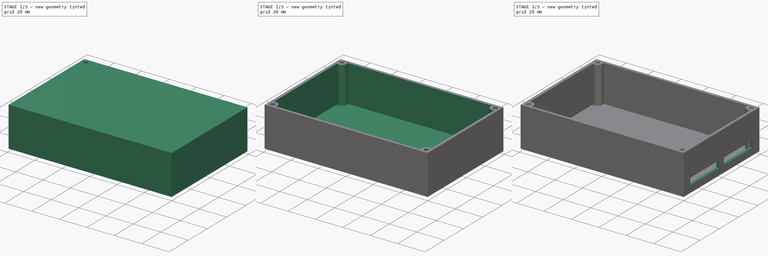
[diagram: build sequence overview — one tinted view per stage of 3, left to right]
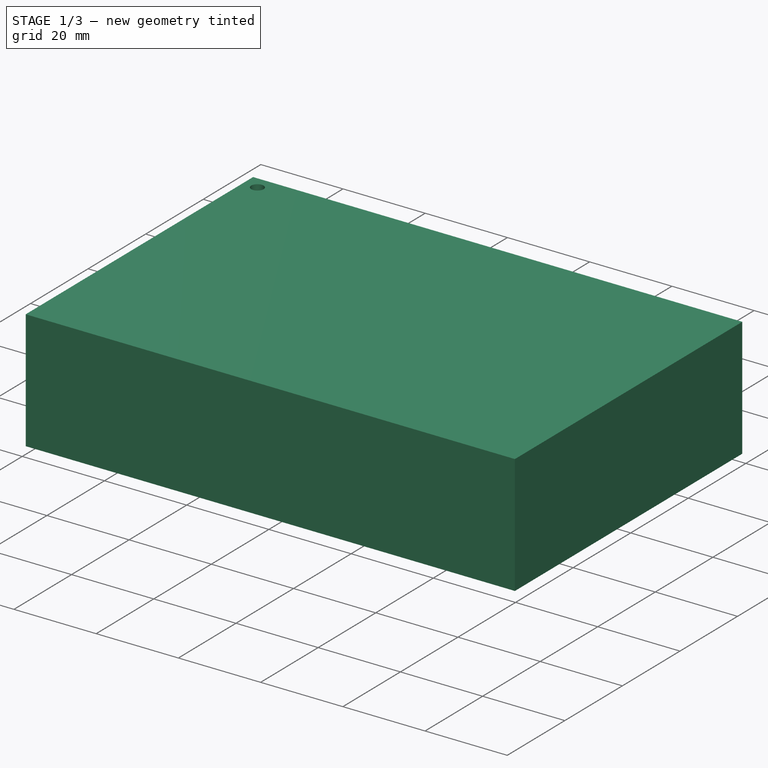
[diagram: stage 1 of 3 — iso view after this stage's code; geometry added in this stage tinted green]
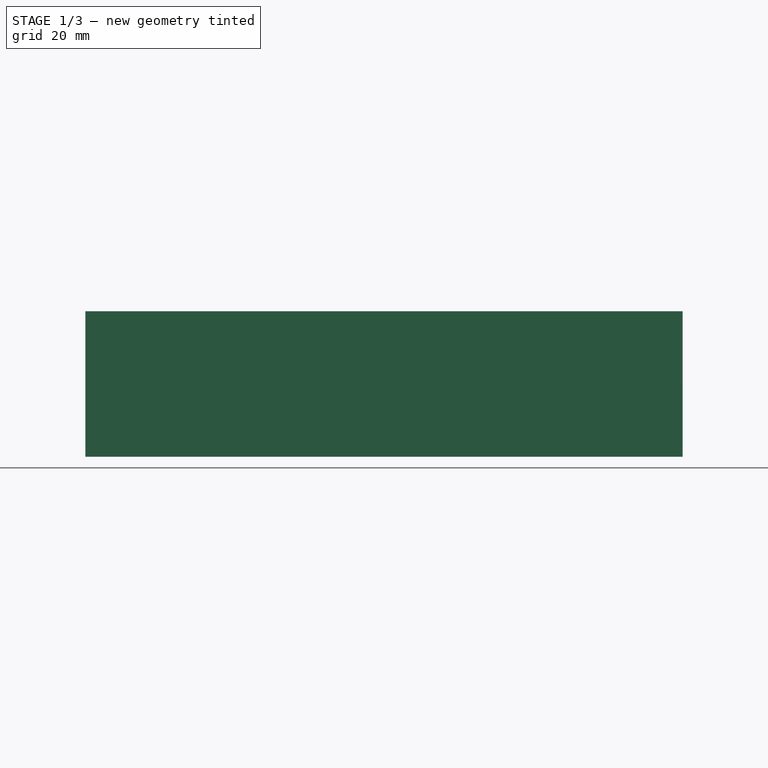
[diagram: stage 1 of 3 — front view after this stage's code; geometry added in this stage tinted green]
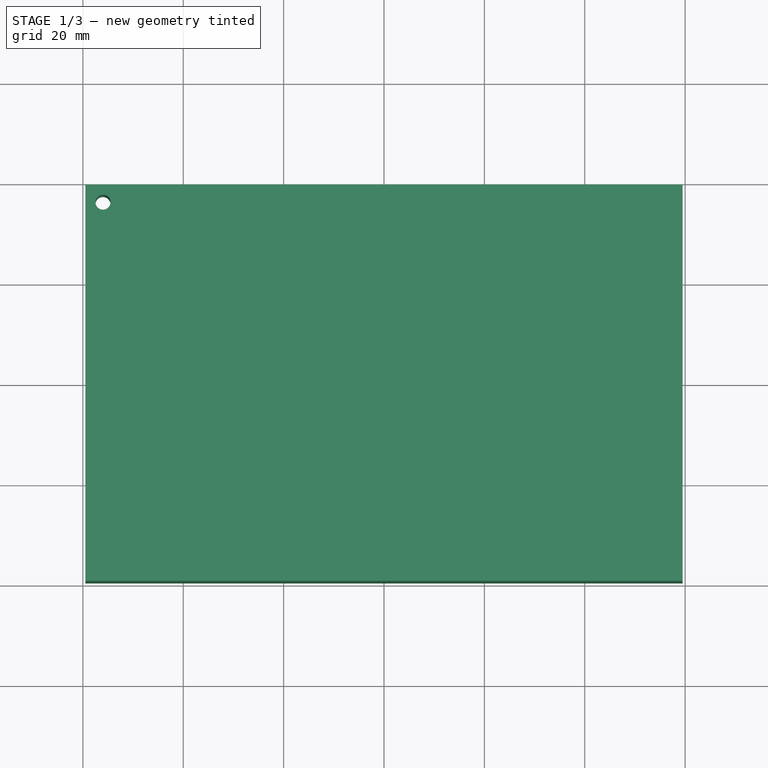
[diagram: stage 1 of 3 — top view after this stage's code; geometry added in this stage tinted green]
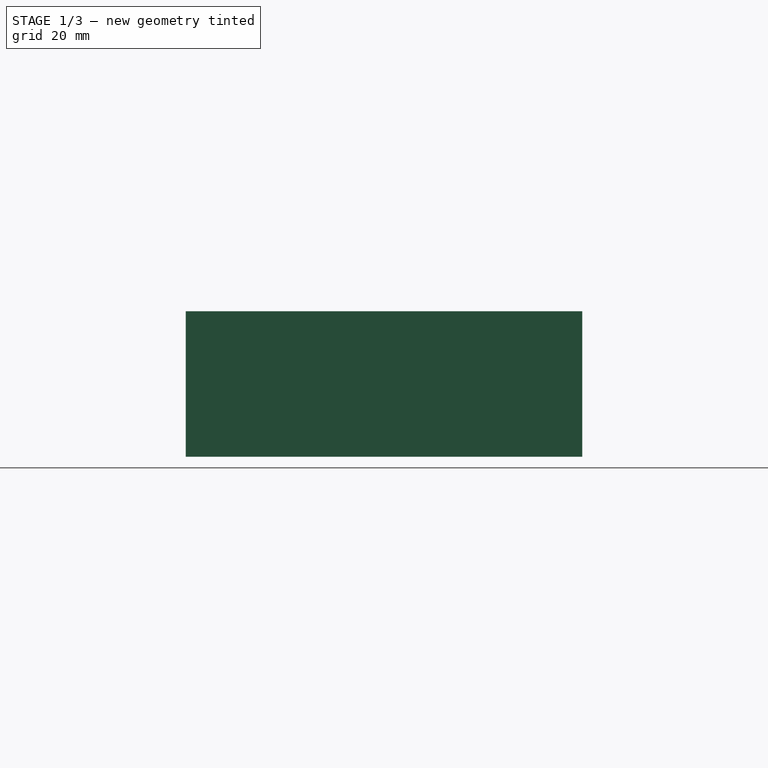
[diagram: stage 1 of 3 — right view after this stage's code; geometry added in this stage tinted green]
FCSTD DOCUMENT  (FreeCAD 0.16R6706 (Git))
Label: InjectionControllerCase
License: All rights reserved
LicenseURL: http://en.wikipedia.org/wiki/All_rights_reserved
objects: Sketcher::SketchObject×3, PartDesign::Mirrored×3, PartDesign::Pocket×2, PartDesign::Pad×1, PartDesign::MultiTransform×1, Part::Thickness×1
note: 14 computed .brp shape members not serialized (recipe doc carries the construction recipe); baked Part::Feature solids carry a one-line shape summary decoded from their .brp

FEATURE [Sketcher::SketchObject] Sketch
  sketch-geometry (6):
    g0: LineSegment StartX=-59.5 StartY=39.5 StartZ=0 EndX=59.5 EndY=39.5 EndZ=0
    g1: LineSegment StartX=59.5 StartY=39.5 StartZ=0 EndX=59.5 EndY=-39.5 EndZ=0
    g2: LineSegment StartX=59.5 StartY=-39.5 StartZ=0 EndX=-59.5 EndY=-39.5 EndZ=0
    g3: LineSegment StartX=-59.5 StartY=-39.5 StartZ=0 EndX=-59.5 EndY=39.5 EndZ=0
    g4: LineSegment [constr] StartX=59.5 StartY=39.5 StartZ=0 EndX=-59.5 EndY=-39.5 EndZ=0
    g5: LineSegment [constr] StartX=59.5 StartY=-39.5 StartZ=0 EndX=-59.5 EndY=39.5 EndZ=0
  constraints (16):
    c: Coincident(g0,g1)
    c: Coincident(g1,g2)
    c: Coincident(g2,g3)
    c: Coincident(g3,g0)
    c: Horizontal(g0)
    c: Horizontal(g2)
    c: Vertical(g1)
    c: Vertical(g3)
    c: Distance(g0) = 119
    c: Distance(g3) = 79
    c: Coincident(g4,g0)
    c: Coincident(g4,g2)
    c: Coincident(g5,g1)
    c: Coincident(g5,g0)
    c: PointOnObject(g-1,g4)
    c: PointOnObject(g-1,g5)
FEATURE [PartDesign::Pad] Pad
  Length = 29
  Length2 = 100
  Sketch = -> Sketch
  Type = 0
FEATURE [Sketcher::SketchObject] Sketch001
  ExternalGeometry = -> [Pad]
  Placement = pos=(0,0,29) rot=(0,0,1;0rad)
  Support = -> Pad [Face6]
  expr: Constraints[2] = 7 / 2
  expr: Constraints[1] = 7 / 2
  expr: Constraints[0] = 3 / 2
  sketch-geometry (1):
    g0: Circle CenterX=-56 CenterY=36 CenterZ=0 NormalX=0 NormalY=0 NormalZ=1 Radius=1.5
  constraints (3):
    c: Radius(g0) = 1.5
    c: Distance(g0,g-3) = 3.5
    c: Distance(g0,g-4) = 3.5
FEATURE [PartDesign::Pocket] Pocket
  Length = 5
  Sketch = -> Sketch001
  Type = 1
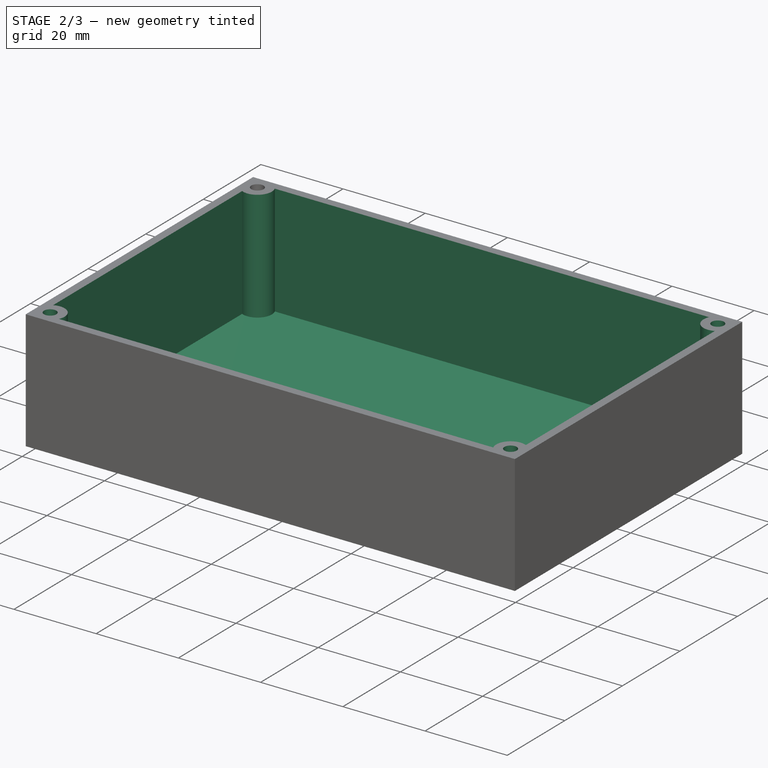
[diagram: stage 2 of 3 — iso view after this stage's code; geometry added in this stage tinted green]
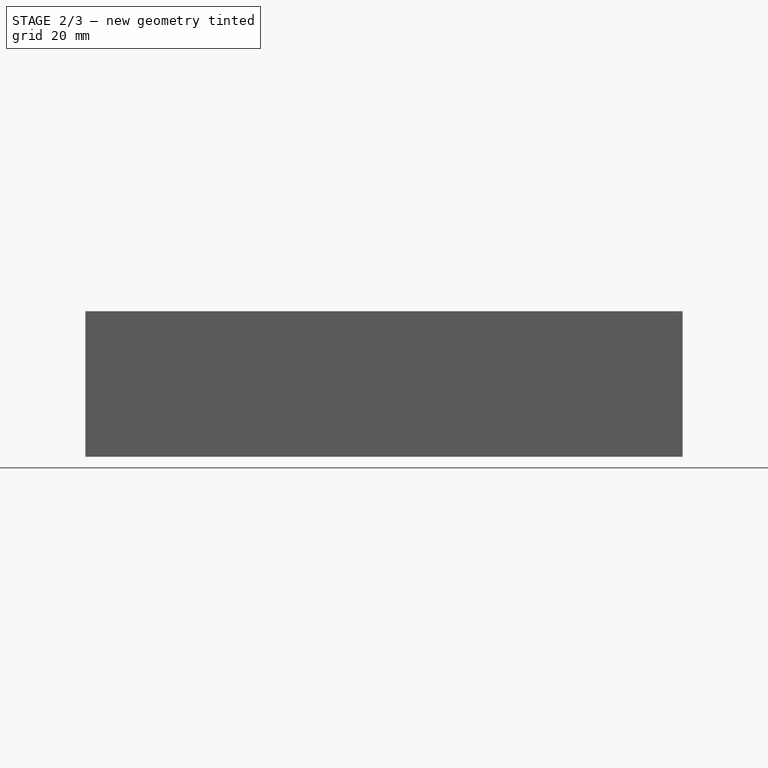
[diagram: stage 2 of 3 — front view after this stage's code; geometry added in this stage tinted green]
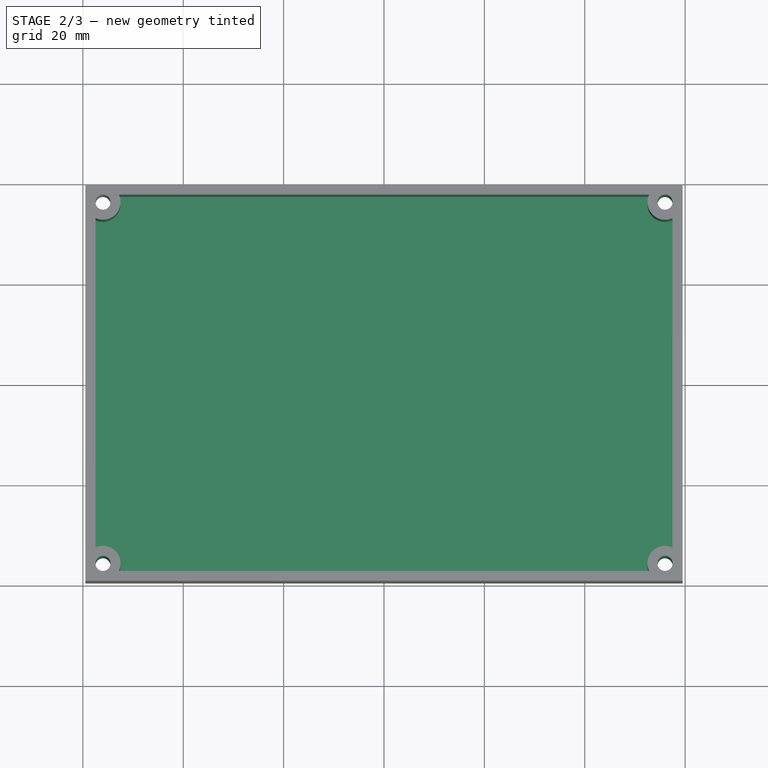
[diagram: stage 2 of 3 — top view after this stage's code; geometry added in this stage tinted green]
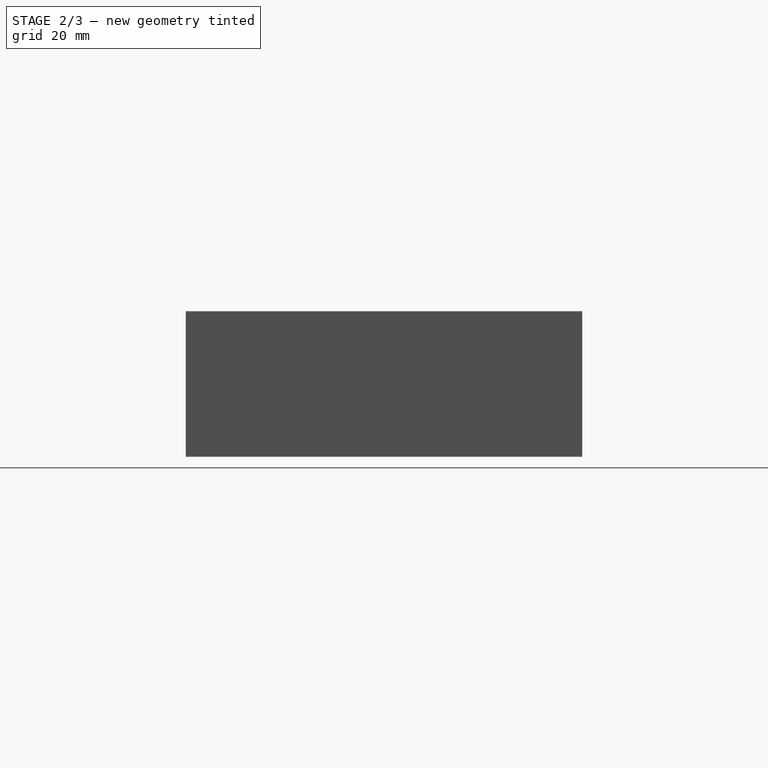
[diagram: stage 2 of 3 — right view after this stage's code; geometry added in this stage tinted green]
FEATURE [PartDesign::Mirrored] Mirrored
  MirrorPlane = -> Sketch001 [V_Axis]
FEATURE [PartDesign::Mirrored] Mirrored001
  MirrorPlane = -> Sketch001 [H_Axis]
FEATURE [PartDesign::MultiTransform] MultiTransform
  Originals = -> [Pocket]
  Transformations = -> [Mirrored,Mirrored001]
FEATURE [Part::Thickness] Thickness
  Faces = -> MultiTransform [Face5]
  Intersection = true
  Join = 0
  Mode = 0
  SelfIntersection = false
  Value = -2
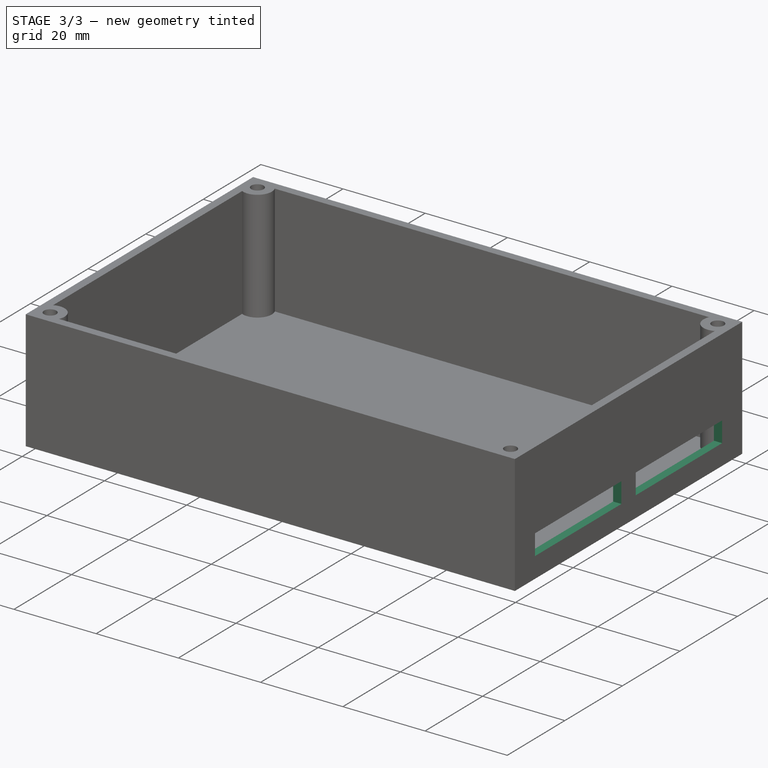
[diagram: stage 3 of 3 — iso view after this stage's code; geometry added in this stage tinted green]
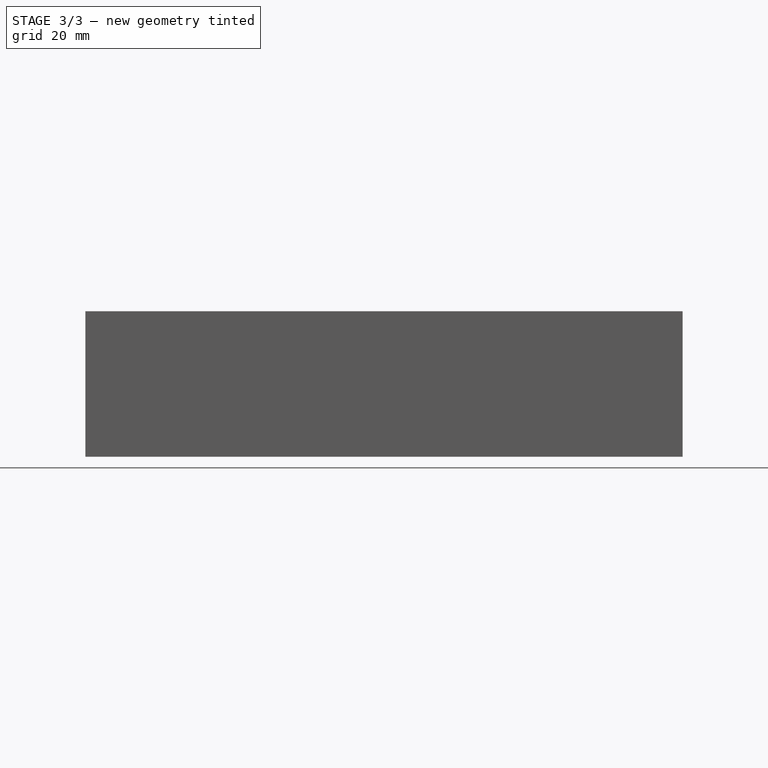
[diagram: stage 3 of 3 — front view after this stage's code; geometry added in this stage tinted green]
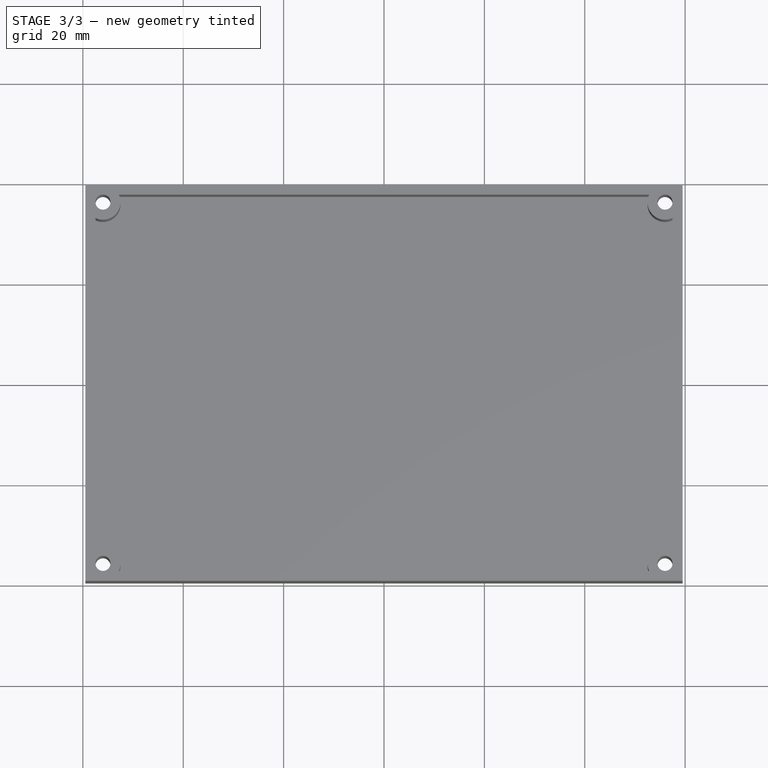
[diagram: stage 3 of 3 — top view after this stage's code; geometry added in this stage tinted green]
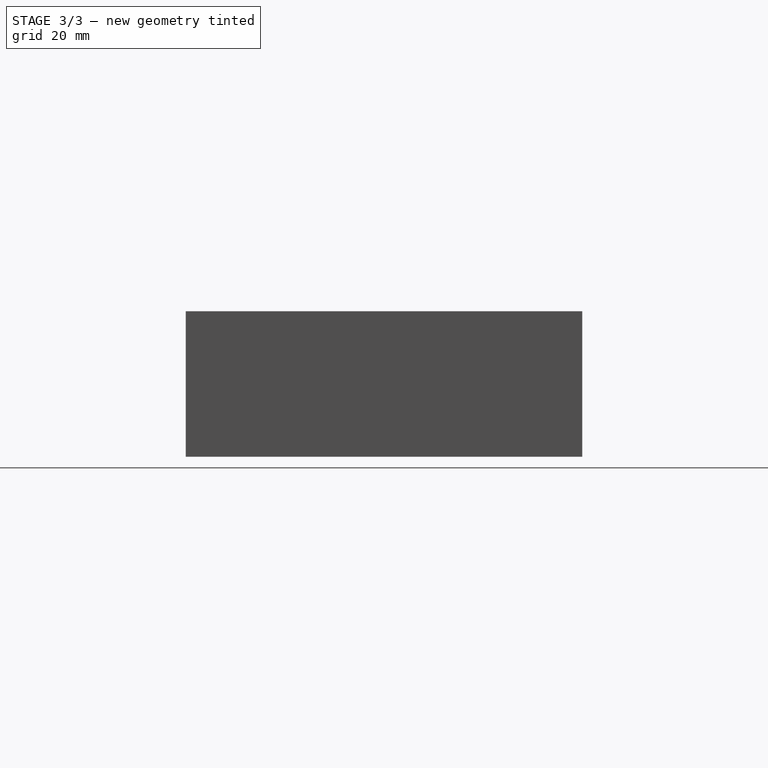
[diagram: stage 3 of 3 — right view after this stage's code; geometry added in this stage tinted green]
FEATURE [Sketcher::SketchObject] Sketch002
  Placement = pos=(59.5,0,0) rot=(0.57735,0.57735,0.57735;2.0944rad)
  Support = -> Thickness [Face3]
  sketch-geometry (4):
    g0: LineSegment StartX=-32.5 StartY=10 StartZ=0 EndX=-2.5 EndY=10 EndZ=0
    g1: LineSegment StartX=-2.5 StartY=10 StartZ=0 EndX=-2.5 EndY=5 EndZ=0
    g2: LineSegment StartX=-2.5 StartY=5 StartZ=0 EndX=-32.5 EndY=5 EndZ=0
    g3: LineSegment StartX=-32.5 StartY=5 StartZ=0 EndX=-32.5 EndY=10 EndZ=0
  constraints (12):
    c: Coincident(g0,g1)
    c: Coincident(g1,g2)
    c: Coincident(g2,g3)
    c: Coincident(g3,g0)
    c: Horizontal(g0)
    c: Horizontal(g2)
    c: Vertical(g1)
    c: Vertical(g3)
    c: DistanceY(g-1,g1) = 5
    c: Distance(g1) = 5
    c: Distance(g0) = 30
    c: DistanceX(g1,g-1) = 2.5
FEATURE [PartDesign::Pocket] Pocket001
  Length = 5
  Sketch = -> Sketch002
  Type = 2
FEATURE [PartDesign::Mirrored] Mirrored002
  MirrorPlane = -> Sketch002 [V_Axis]
  Originals = -> [Pocket001]
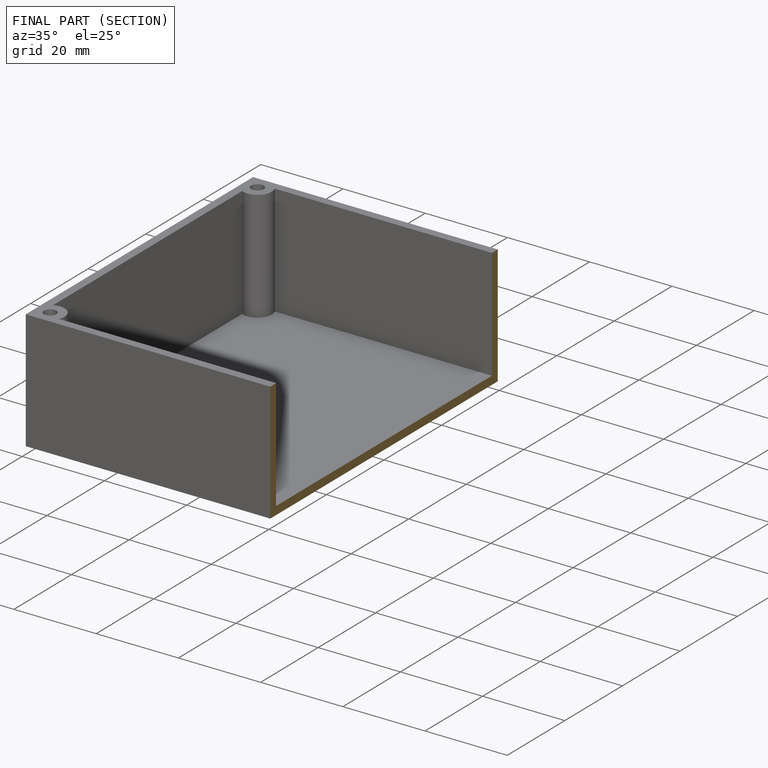
[diagram: finished part — half-section view (interior)]
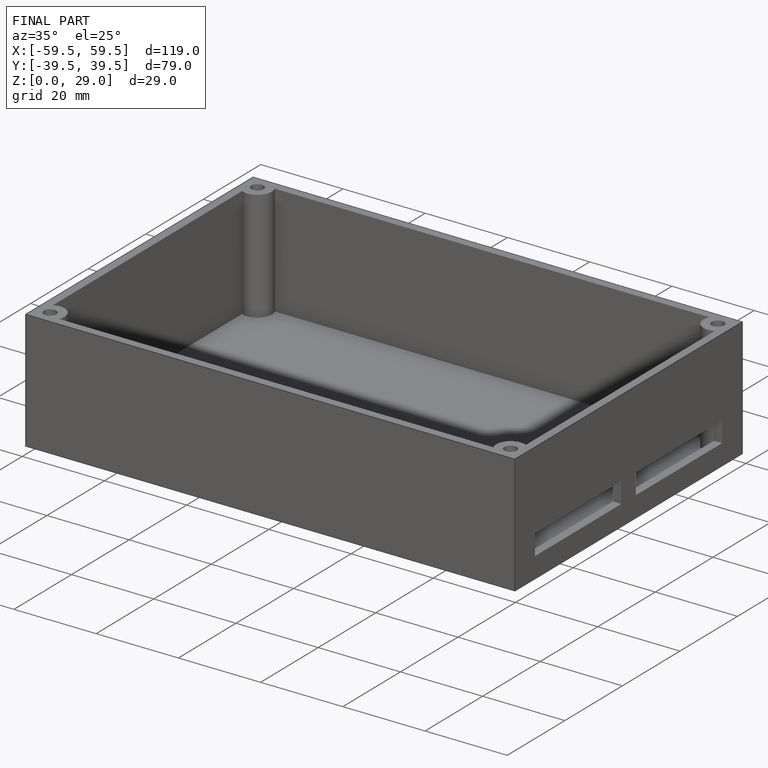
[diagram: finished part — iso view with bounding-box wireframe]
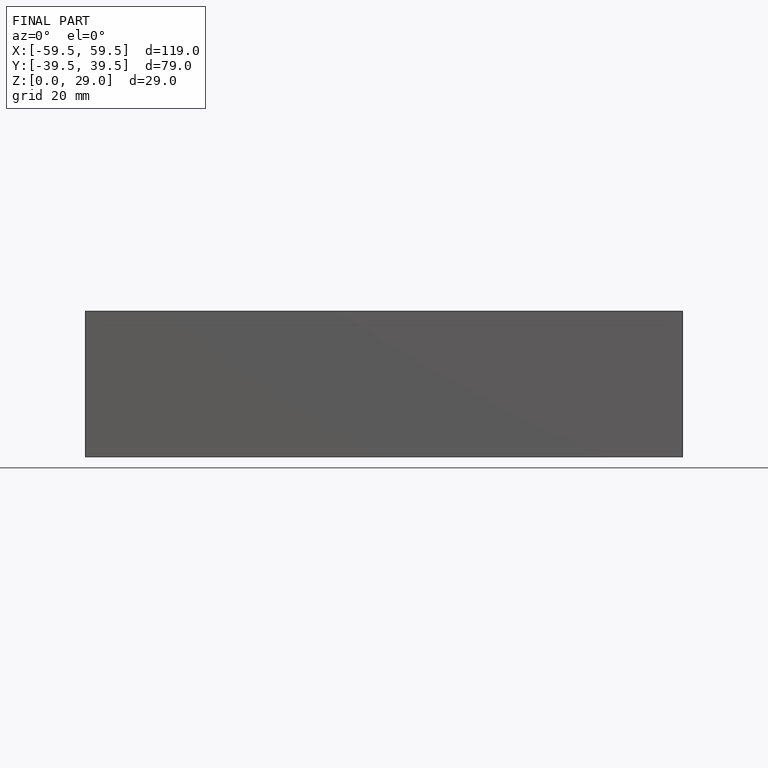
[diagram: finished part — front view with bounding-box wireframe]
